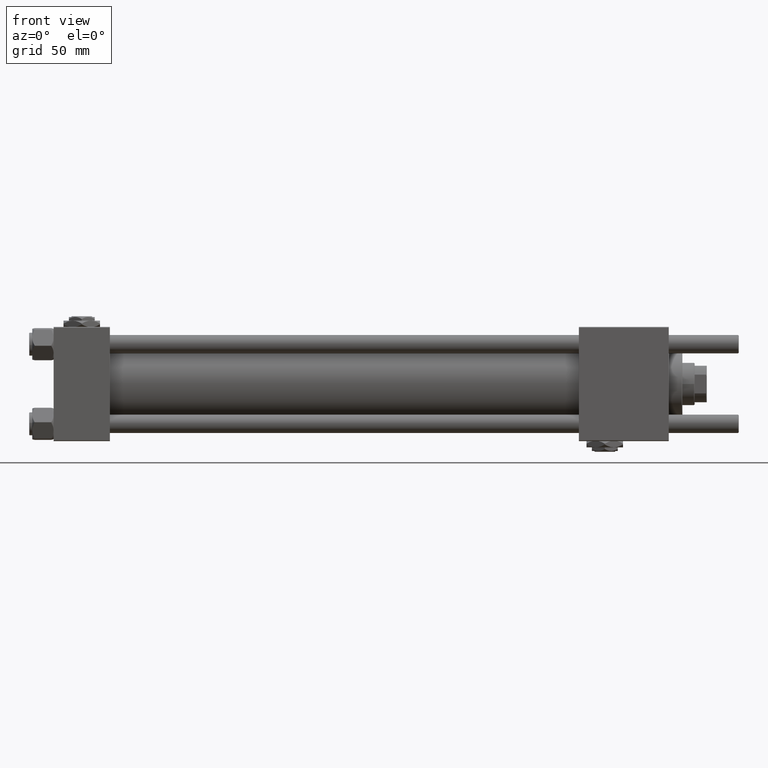
[diagram: clean part render]
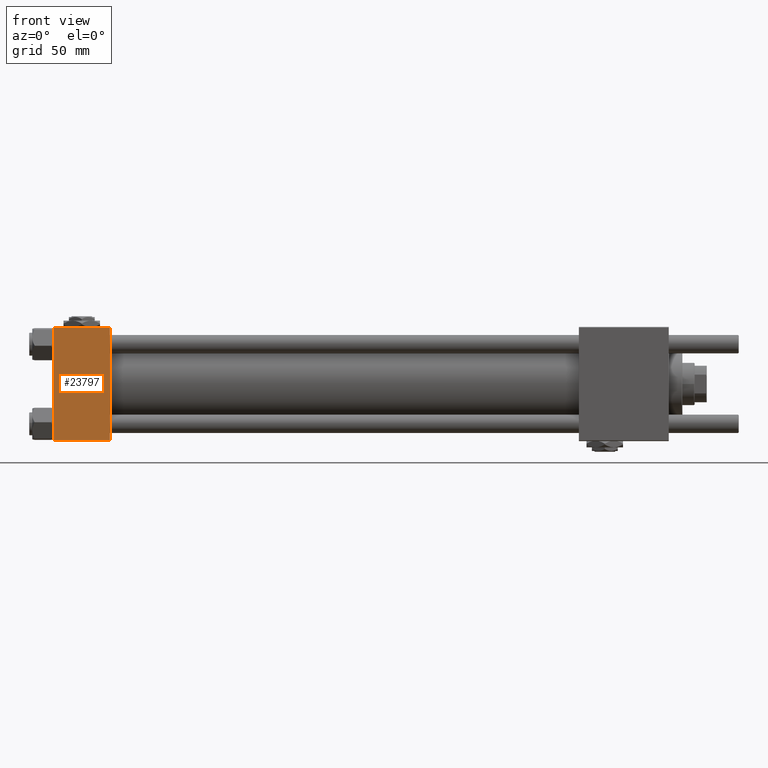
[diagram: same view with one face highlighted and labeled with its STEP entity id]
A machine part, front view. The second image highlights one B-rep face of the part: STEP entity #23797.
In plain terms, the highlighted planar face has unit normal (0, 1, 0).
Its self-contained STEP definition (entity closure, byte-faithful):
#163 = DIRECTION ( 'NONE',  ( 0.000000000000000000, 9.251858538542971581E-17, -1.000000000000000000 ) ) ;
#747 = LINE ( 'NONE', #51504, #45866 ) ;
#1198 = CARTESIAN_POINT ( 'NONE',  ( 37.00000000000000000, -37.50000000000000711, 36.99999999999999289 ) ) ;
#4973 = EDGE_CURVE ( 'NONE', #49264, #58746, #46481, .T. ) ;
#5778 = CARTESIAN_POINT ( 'NONE',  ( 0.000000000000000000, -37.50000000000000711, 37.49999999999999289 ) ) ;
#6078 = VECTOR ( 'NONE', #24009, 1000.000000000000000 ) ;
#10463 = ORIENTED_EDGE ( 'NONE', *, *, #29320, .T. ) ;
#10800 = EDGE_CURVE ( 'NONE', #26151, #12049, #51653, .T. ) ;
#12049 = VERTEX_POINT ( 'NONE', #13510 ) ;
#13510 = CARTESIAN_POINT ( 'NONE',  ( 37.00000000000000000, -37.50000000000000000, -37.00000000000003553 ) ) ;
#14272 = CARTESIAN_POINT ( 'NONE',  ( 0.000000000000000000, -37.50000000000000000, -37.00000000000003553 ) ) ;
#15167 = EDGE_LOOP ( 'NONE', ( #38160, #10463, #16181, #23375 ) ) ;
#15390 = CARTESIAN_POINT ( 'NONE',  ( 37.00000000000000000, -37.50000000000000711, 37.49999999999999289 ) ) ;
#16181 = ORIENTED_EDGE ( 'NONE', *, *, #10800, .F. ) ;
#16277 = AXIS2_PLACEMENT_3D ( 'NONE', #18108, #18412, #55240 ) ;
#18108 = CARTESIAN_POINT ( 'NONE',  ( 37.00000000000000000, -37.50000000000000711, 37.49999999999999289 ) ) ;
#18412 = DIRECTION ( 'NONE',  ( -0.000000000000000000, 1.000000000000000000, 9.251858538542971581E-17 ) ) ;
#18706 = PLANE ( 'NONE',  #16277 ) ;
#23375 = ORIENTED_EDGE ( 'NONE', *, *, #49169, .T. ) ;
#23797 = ADVANCED_FACE ( 'NONE', ( #50806 ), #18706, .F. ) ;
#24009 = DIRECTION ( 'NONE',  ( 0.000000000000000000, 9.251858538542971581E-17, -1.000000000000000000 ) ) ;
#26151 = VERTEX_POINT ( 'NONE', #1198 ) ;
#29320 = EDGE_CURVE ( 'NONE', #58746, #12049, #747, .T. ) ;
#31945 = VECTOR ( 'NONE', #34052, 1000.000000000000000 ) ;
#33393 = VECTOR ( 'NONE', #163, 1000.000000000000000 ) ;
#34052 = DIRECTION ( 'NONE',  ( -1.000000000000000000, 0.000000000000000000, 0.000000000000000000 ) ) ;
#34648 = LINE ( 'NONE', #56672, #31945 ) ;
#36100 = CARTESIAN_POINT ( 'NONE',  ( 0.000000000000000000, -37.50000000000000711, 36.99999999999999289 ) ) ;
#38160 = ORIENTED_EDGE ( 'NONE', *, *, #4973, .T. ) ;
#45866 = VECTOR ( 'NONE', #55955, 1000.000000000000000 ) ;
#46481 = LINE ( 'NONE', #5778, #33393 ) ;
#49169 = EDGE_CURVE ( 'NONE', #26151, #49264, #34648, .T. ) ;
#49264 = VERTEX_POINT ( 'NONE', #36100 ) ;
#50806 = FACE_OUTER_BOUND ( 'NONE', #15167, .T. ) ;
#51504 = CARTESIAN_POINT ( 'NONE',  ( 37.00000000000000000, -37.50000000000000000, -37.00000000000003553 ) ) ;
#51653 = LINE ( 'NONE', #15390, #6078 ) ;
#55240 = DIRECTION ( 'NONE',  ( 0.000000000000000000, -9.251858538542971581E-17, 1.000000000000000000 ) ) ;
#55955 = DIRECTION ( 'NONE',  ( 1.000000000000000000, 0.000000000000000000, 0.000000000000000000 ) ) ;
#56672 = CARTESIAN_POINT ( 'NONE',  ( 37.00000000000000000, -37.50000000000000711, 36.99999999999999289 ) ) ;
#58746 = VERTEX_POINT ( 'NONE', #14272 ) ;